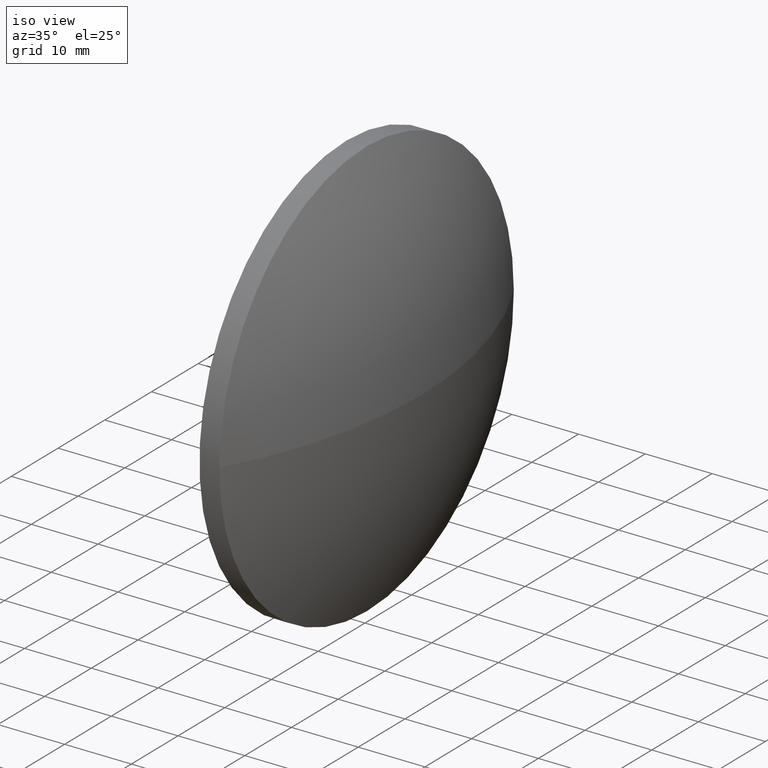
[diagram: clean part render]
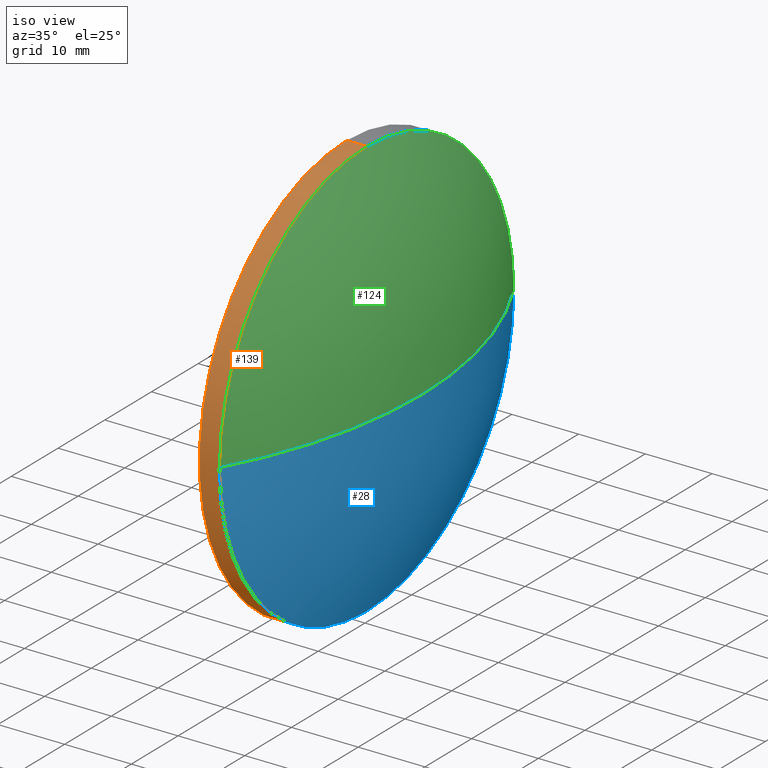
[diagram: same view with three faces highlighted in distinct colors, each labeled with its STEP entity id]
A machine part, iso view with three faces highlighted in distinct colors.
Their STEP definitions:

[orange] entity #139 — the highlighted cylindrical surface (partial cylindrical patch) has radius 31.5 mm, axis along (-1, -0, -0).
#1 = CARTESIAN_POINT ( 'NONE',  ( 229.8933010013870400, 130.5185814569561000, 0.0000000000000000000 ) ) ;
#3 = ORIENTED_EDGE ( 'NONE', *, *, #155, .T. ) ;
#6 = DIRECTION ( 'NONE',  ( 0.0000000000000000000, 0.0000000000000000000, 1.000000000000000000 ) ) ;
#11 = VERTEX_POINT ( 'NONE', #133 ) ;
#12 = AXIS2_PLACEMENT_3D ( 'NONE', #1, #46, #6 ) ;
#13 = VECTOR ( 'NONE', #95, 1000.000000000000000 ) ;
#19 = VERTEX_POINT ( 'NONE', #174 ) ;
#20 = LINE ( 'NONE', #83, #129 ) ;
#21 = EDGE_CURVE ( 'NONE', #138, #169, #25, .T. ) ;
#23 = CARTESIAN_POINT ( 'NONE',  ( 218.1236667371545400, 130.5185814569561000, 0.0000000000000000000 ) ) ;
#25 = CIRCLE ( 'NONE', #85, 31.50000000000000000 ) ;
#32 = ORIENTED_EDGE ( 'NONE', *, *, #79, .T. ) ;
#33 = DIRECTION ( 'NONE',  ( -1.000000000000000000, -0.0000000000000000000, -0.0000000000000000000 ) ) ;
#35 = DIRECTION ( 'NONE',  ( 0.0000000000000000000, 0.0000000000000000000, 1.000000000000000000 ) ) ;
#39 = ORIENTED_EDGE ( 'NONE', *, *, #61, .F. ) ;
#43 = AXIS2_PLACEMENT_3D ( 'NONE', #23, #98, #35 ) ;
#46 = DIRECTION ( 'NONE',  ( -1.000000000000000000, -0.0000000000000000000, -0.0000000000000000000 ) ) ;
#50 = CYLINDRICAL_SURFACE ( 'NONE', #43, 31.50000000000000000 ) ;
#60 = CIRCLE ( 'NONE', #140, 31.50000000000000000 ) ;
#61 = EDGE_CURVE ( 'NONE', #138, #73, #176, .T. ) ;
#64 = DIRECTION ( 'NONE',  ( 0.0000000000000000000, 0.0000000000000000000, 1.000000000000000000 ) ) ;
#71 = DIRECTION ( 'NONE',  ( -1.000000000000000000, -0.0000000000000000000, -0.0000000000000000000 ) ) ;
#73 = VERTEX_POINT ( 'NONE', #114 ) ;
#79 = EDGE_CURVE ( 'NONE', #169, #11, #184, .T. ) ;
#82 = CARTESIAN_POINT ( 'NONE',  ( 229.8933010013870400, 99.01858145695611300, -3.857637417314160300E-015 ) ) ;
#83 = CARTESIAN_POINT ( 'NONE',  ( 218.1236667371545400, 130.5185814569561000, 31.50000000000000000 ) ) ;
#84 = FACE_OUTER_BOUND ( 'NONE', #186, .T. ) ;
#85 = AXIS2_PLACEMENT_3D ( 'NONE', #145, #33, #64 ) ;
#93 = ORIENTED_EDGE ( 'NONE', *, *, #107, .F. ) ;
#95 = DIRECTION ( 'NONE',  ( -1.000000000000000000, -0.0000000000000000000, -0.0000000000000000000 ) ) ;
#98 = DIRECTION ( 'NONE',  ( -1.000000000000000000, -0.0000000000000000000, -0.0000000000000000000 ) ) ;
#107 = EDGE_CURVE ( 'NONE', #73, #19, #60, .T. ) ;
#114 = CARTESIAN_POINT ( 'NONE',  ( 226.8933010013870400, 130.5185814569561000, -31.50000000000000000 ) ) ;
#129 = VECTOR ( 'NONE', #137, 1000.000000000000000 ) ;
#133 = CARTESIAN_POINT ( 'NONE',  ( 229.8933010013870400, 130.5185814569561000, 31.50000000000000000 ) ) ;
#136 = CARTESIAN_POINT ( 'NONE',  ( 226.8933010013870400, 130.5185814569561000, 0.0000000000000000000 ) ) ;
#137 = DIRECTION ( 'NONE',  ( -1.000000000000000000, -0.0000000000000000000, -0.0000000000000000000 ) ) ;
#138 = VERTEX_POINT ( 'NONE', #177 ) ;
#139 = ADVANCED_FACE ( 'NONE', ( #84 ), #50, .T. ) ;
#140 = AXIS2_PLACEMENT_3D ( 'NONE', #136, #71, #166 ) ;
#141 = ORIENTED_EDGE ( 'NONE', *, *, #21, .T. ) ;
#145 = CARTESIAN_POINT ( 'NONE',  ( 229.8933010013870400, 130.5185814569561000, 0.0000000000000000000 ) ) ;
#155 = EDGE_CURVE ( 'NONE', #11, #19, #20, .T. ) ;
#166 = DIRECTION ( 'NONE',  ( 0.0000000000000000000, 0.0000000000000000000, 1.000000000000000000 ) ) ;
#169 = VERTEX_POINT ( 'NONE', #82 ) ;
#174 = CARTESIAN_POINT ( 'NONE',  ( 226.8933010013870400, 130.5185814569561000, 31.50000000000000000 ) ) ;
#175 = CARTESIAN_POINT ( 'NONE',  ( 218.1236667371545400, 130.5185814569561000, -31.50000000000000000 ) ) ;
#176 = LINE ( 'NONE', #175, #13 ) ;
#177 = CARTESIAN_POINT ( 'NONE',  ( 229.8933010013870400, 130.5185814569561000, -31.50000000000000000 ) ) ;
#184 = CIRCLE ( 'NONE', #12, 31.50000000000000000 ) ;
#186 = EDGE_LOOP ( 'NONE', ( #39, #141, #32, #3, #93 ) ) ;

[blue] entity #28 — the highlighted spherical surface has radius 64.5344 mm.
#15 = SPHERICAL_SURFACE ( 'NONE', #53, 64.53435444579771700 ) ;
#17 = CIRCLE ( 'NONE', #160, 31.50000000000000000 ) ;
#21 = EDGE_CURVE ( 'NONE', #138, #169, #25, .T. ) ;
#25 = CIRCLE ( 'NONE', #85, 31.50000000000000000 ) ;
#28 = ADVANCED_FACE ( 'NONE', ( #63 ), #15, .T. ) ;
#33 = DIRECTION ( 'NONE',  ( -1.000000000000000000, -0.0000000000000000000, -0.0000000000000000000 ) ) ;
#40 = CIRCLE ( 'NONE', #121, 64.53435444579771700 ) ;
#49 = ORIENTED_EDGE ( 'NONE', *, *, #117, .F. ) ;
#52 = EDGE_LOOP ( 'NONE', ( #49, #151, #55, #156 ) ) ;
#53 = AXIS2_PLACEMENT_3D ( 'NONE', #131, #77, #80 ) ;
#55 = ORIENTED_EDGE ( 'NONE', *, *, #21, .F. ) ;
#63 = FACE_OUTER_BOUND ( 'NONE', #52, .T. ) ;
#64 = DIRECTION ( 'NONE',  ( 0.0000000000000000000, 0.0000000000000000000, 1.000000000000000000 ) ) ;
#66 = DIRECTION ( 'NONE',  ( 0.0000000000000000000, 1.000000000000000000, 1.224646799147353200E-016 ) ) ;
#67 = CARTESIAN_POINT ( 'NONE',  ( 229.8933010013870400, 162.0185814569560700, 0.0000000000000000000 ) ) ;
#70 = DIRECTION ( 'NONE',  ( -1.000000000000000000, -0.0000000000000000000, -0.0000000000000000000 ) ) ;
#72 = VERTEX_POINT ( 'NONE', #128 ) ;
#75 = VERTEX_POINT ( 'NONE', #67 ) ;
#77 = DIRECTION ( 'NONE',  ( -0.0000000000000000000, 0.0000000000000000000, -1.000000000000000000 ) ) ;
#80 = DIRECTION ( 'NONE',  ( 0.0000000000000000000, 1.000000000000000000, 0.0000000000000000000 ) ) ;
#82 = CARTESIAN_POINT ( 'NONE',  ( 229.8933010013870400, 99.01858145695611300, -3.857637417314160300E-015 ) ) ;
#85 = AXIS2_PLACEMENT_3D ( 'NONE', #145, #33, #64 ) ;
#105 = CARTESIAN_POINT ( 'NONE',  ( 173.5689465555893200, 130.5185814569561000, 0.0000000000000000000 ) ) ;
#109 = DIRECTION ( 'NONE',  ( 1.000000000000000000, 0.0000000000000000000, 0.0000000000000000000 ) ) ;
#110 = DIRECTION ( 'NONE',  ( -0.0000000000000000000, 0.0000000000000000000, 1.000000000000000000 ) ) ;
#117 = EDGE_CURVE ( 'NONE', #72, #75, #143, .T. ) ;
#121 = AXIS2_PLACEMENT_3D ( 'NONE', #105, #180, #66 ) ;
#128 = CARTESIAN_POINT ( 'NONE',  ( 238.1033010013870500, 130.5185814569561000, 0.0000000000000000000 ) ) ;
#131 = CARTESIAN_POINT ( 'NONE',  ( 173.5689465555893200, 130.5185814569561000, 0.0000000000000000000 ) ) ;
#138 = VERTEX_POINT ( 'NONE', #177 ) ;
#143 = CIRCLE ( 'NONE', #154, 64.53435444579771700 ) ;
#145 = CARTESIAN_POINT ( 'NONE',  ( 229.8933010013870400, 130.5185814569561000, 0.0000000000000000000 ) ) ;
#147 = CARTESIAN_POINT ( 'NONE',  ( 229.8933010013870400, 130.5185814569561000, 0.0000000000000000000 ) ) ;
#151 = ORIENTED_EDGE ( 'NONE', *, *, #178, .T. ) ;
#154 = AXIS2_PLACEMENT_3D ( 'NONE', #182, #110, #109 ) ;
#156 = ORIENTED_EDGE ( 'NONE', *, *, #171, .F. ) ;
#160 = AXIS2_PLACEMENT_3D ( 'NONE', #147, #70, #165 ) ;
#165 = DIRECTION ( 'NONE',  ( 0.0000000000000000000, 0.0000000000000000000, 1.000000000000000000 ) ) ;
#169 = VERTEX_POINT ( 'NONE', #82 ) ;
#171 = EDGE_CURVE ( 'NONE', #75, #138, #17, .T. ) ;
#177 = CARTESIAN_POINT ( 'NONE',  ( 229.8933010013870400, 130.5185814569561000, -31.50000000000000000 ) ) ;
#178 = EDGE_CURVE ( 'NONE', #72, #169, #40, .T. ) ;
#180 = DIRECTION ( 'NONE',  ( 0.0000000000000000000, 1.224646799147353200E-016, -1.000000000000000000 ) ) ;
#182 = CARTESIAN_POINT ( 'NONE',  ( 173.5689465555893200, 130.5185814569561000, 0.0000000000000000000 ) ) ;

[green] entity #124 — the highlighted spherical surface has radius 64.5344 mm.
#1 = CARTESIAN_POINT ( 'NONE',  ( 229.8933010013870400, 130.5185814569561000, 0.0000000000000000000 ) ) ;
#6 = DIRECTION ( 'NONE',  ( 0.0000000000000000000, 0.0000000000000000000, 1.000000000000000000 ) ) ;
#8 = DIRECTION ( 'NONE',  ( -0.0000000000000000000, 0.0000000000000000000, -1.000000000000000000 ) ) ;
#10 = DIRECTION ( 'NONE',  ( 0.0000000000000000000, 1.000000000000000000, 0.0000000000000000000 ) ) ;
#11 = VERTEX_POINT ( 'NONE', #133 ) ;
#12 = AXIS2_PLACEMENT_3D ( 'NONE', #1, #46, #6 ) ;
#40 = CIRCLE ( 'NONE', #121, 64.53435444579771700 ) ;
#42 = SPHERICAL_SURFACE ( 'NONE', #168, 64.53435444579771700 ) ;
#45 = ORIENTED_EDGE ( 'NONE', *, *, #178, .F. ) ;
#46 = DIRECTION ( 'NONE',  ( -1.000000000000000000, -0.0000000000000000000, -0.0000000000000000000 ) ) ;
#58 = ORIENTED_EDGE ( 'NONE', *, *, #101, .F. ) ;
#66 = DIRECTION ( 'NONE',  ( 0.0000000000000000000, 1.000000000000000000, 1.224646799147353200E-016 ) ) ;
#67 = CARTESIAN_POINT ( 'NONE',  ( 229.8933010013870400, 162.0185814569560700, 0.0000000000000000000 ) ) ;
#72 = VERTEX_POINT ( 'NONE', #128 ) ;
#74 = AXIS2_PLACEMENT_3D ( 'NONE', #162, #179, #96 ) ;
#75 = VERTEX_POINT ( 'NONE', #67 ) ;
#79 = EDGE_CURVE ( 'NONE', #169, #11, #184, .T. ) ;
#82 = CARTESIAN_POINT ( 'NONE',  ( 229.8933010013870400, 99.01858145695611300, -3.857637417314160300E-015 ) ) ;
#87 = FACE_OUTER_BOUND ( 'NONE', #90, .T. ) ;
#90 = EDGE_LOOP ( 'NONE', ( #45, #113, #58, #120 ) ) ;
#96 = DIRECTION ( 'NONE',  ( 0.0000000000000000000, 0.0000000000000000000, 1.000000000000000000 ) ) ;
#97 = CARTESIAN_POINT ( 'NONE',  ( 173.5689465555893200, 130.5185814569561000, 0.0000000000000000000 ) ) ;
#99 = CIRCLE ( 'NONE', #74, 31.50000000000000000 ) ;
#101 = EDGE_CURVE ( 'NONE', #11, #75, #99, .T. ) ;
#105 = CARTESIAN_POINT ( 'NONE',  ( 173.5689465555893200, 130.5185814569561000, 0.0000000000000000000 ) ) ;
#109 = DIRECTION ( 'NONE',  ( 1.000000000000000000, 0.0000000000000000000, 0.0000000000000000000 ) ) ;
#110 = DIRECTION ( 'NONE',  ( -0.0000000000000000000, 0.0000000000000000000, 1.000000000000000000 ) ) ;
#113 = ORIENTED_EDGE ( 'NONE', *, *, #117, .T. ) ;
#117 = EDGE_CURVE ( 'NONE', #72, #75, #143, .T. ) ;
#120 = ORIENTED_EDGE ( 'NONE', *, *, #79, .F. ) ;
#121 = AXIS2_PLACEMENT_3D ( 'NONE', #105, #180, #66 ) ;
#124 = ADVANCED_FACE ( 'NONE', ( #87 ), #42, .T. ) ;
#128 = CARTESIAN_POINT ( 'NONE',  ( 238.1033010013870500, 130.5185814569561000, 0.0000000000000000000 ) ) ;
#133 = CARTESIAN_POINT ( 'NONE',  ( 229.8933010013870400, 130.5185814569561000, 31.50000000000000000 ) ) ;
#143 = CIRCLE ( 'NONE', #154, 64.53435444579771700 ) ;
#154 = AXIS2_PLACEMENT_3D ( 'NONE', #182, #110, #109 ) ;
#162 = CARTESIAN_POINT ( 'NONE',  ( 229.8933010013870400, 130.5185814569561000, 0.0000000000000000000 ) ) ;
#168 = AXIS2_PLACEMENT_3D ( 'NONE', #97, #8, #10 ) ;
#169 = VERTEX_POINT ( 'NONE', #82 ) ;
#178 = EDGE_CURVE ( 'NONE', #72, #169, #40, .T. ) ;
#179 = DIRECTION ( 'NONE',  ( -1.000000000000000000, -0.0000000000000000000, -0.0000000000000000000 ) ) ;
#180 = DIRECTION ( 'NONE',  ( 0.0000000000000000000, 1.224646799147353200E-016, -1.000000000000000000 ) ) ;
#182 = CARTESIAN_POINT ( 'NONE',  ( 173.5689465555893200, 130.5185814569561000, 0.0000000000000000000 ) ) ;
#184 = CIRCLE ( 'NONE', #12, 31.50000000000000000 ) ;